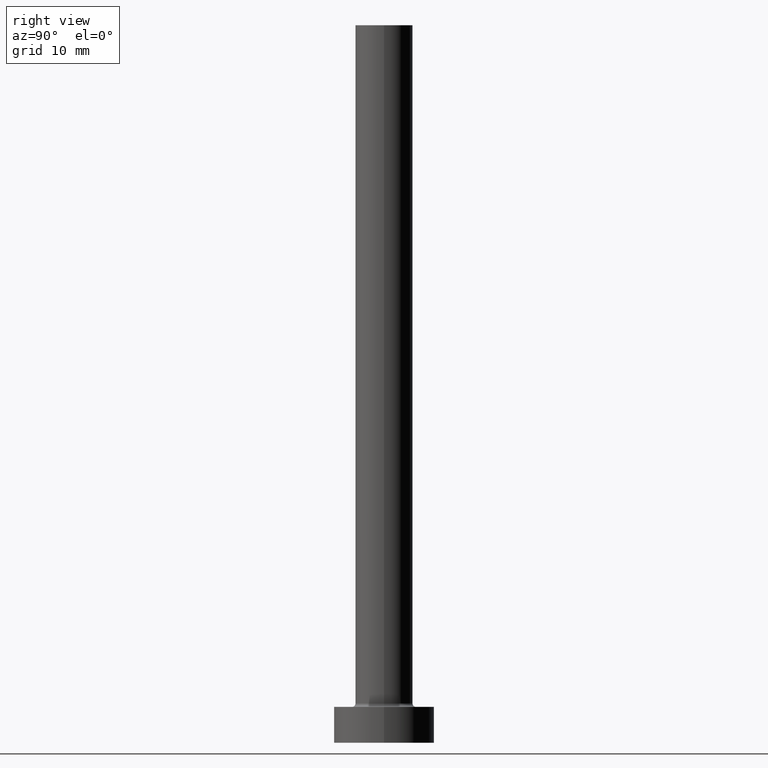
[diagram: clean part render]
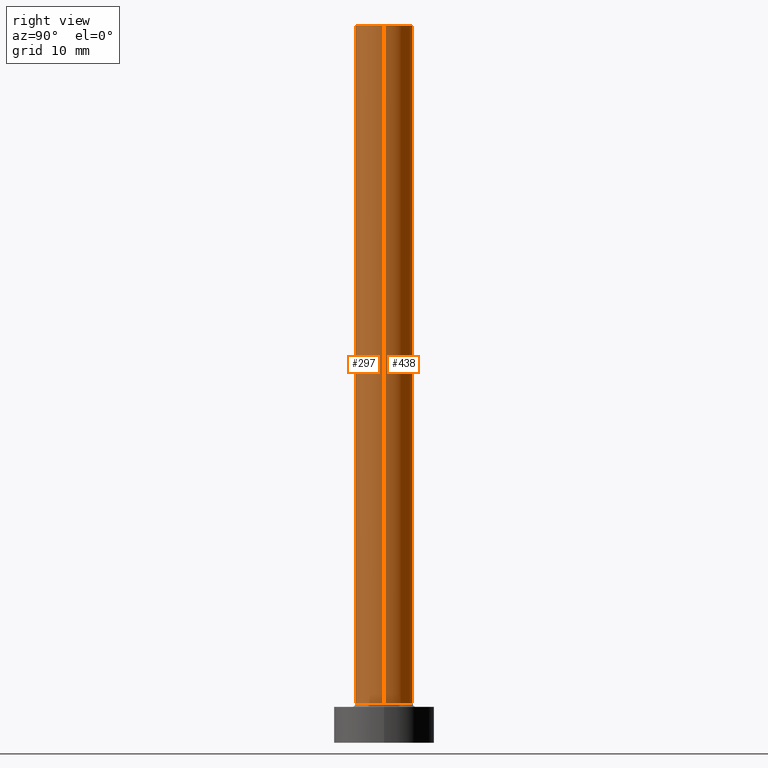
[diagram: same view with one multi-face feature highlighted, each face labeled with its STEP entity id]
A machine part, right view. The highlighted faces form ONE feature: a constant-radius fillet chain: 2 tangent blend faces with common blend radius 4 mm. The faces share edges in the B-rep.
Their STEP definitions:
[1] entity #438 (Cylinder):
#4 = CARTESIAN_POINT ( 'NONE',  ( 0.000000000000000000, 0.000000000000000000, 100.0000000000000000 ) ) ;
#20 = LINE ( 'NONE', #180, #359 ) ;
#43 = CARTESIAN_POINT ( 'NONE',  ( 0.000000000000000000, 0.000000000000000000, 5.500000000000005329 ) ) ;
#45 = EDGE_CURVE ( 'NONE', #194, #159, #222, .T. ) ;
#50 = CARTESIAN_POINT ( 'NONE',  ( -4.000000000000000000, 0.000000000000000000, 5.500000000000005329 ) ) ;
#77 = VERTEX_POINT ( 'NONE', #284 ) ;
#92 = DIRECTION ( 'NONE',  ( -1.000000000000000000, 0.000000000000000000, 0.000000000000000000 ) ) ;
#96 = ORIENTED_EDGE ( 'NONE', *, *, #371, .F. ) ;
#98 = CYLINDRICAL_SURFACE ( 'NONE', #301, 4.000000000000000000 ) ;
#118 = VERTEX_POINT ( 'NONE', #205 ) ;
#123 = CARTESIAN_POINT ( 'NONE',  ( 4.000000000000000000, 4.898587196589412829E-16, 5.500000000000005329 ) ) ;
#124 = VECTOR ( 'NONE', #273, 1000.000000000000000 ) ;
#125 = DIRECTION ( 'NONE',  ( -0.000000000000000000, -0.000000000000000000, -1.000000000000000000 ) ) ;
#131 = EDGE_CURVE ( 'NONE', #77, #194, #20, .T. ) ;
#134 = EDGE_CURVE ( 'NONE', #77, #118, #416, .T. ) ;
#141 = CARTESIAN_POINT ( 'NONE',  ( -4.000000000000000000, 0.000000000000000000, 100.0000000000000000 ) ) ;
#159 = VERTEX_POINT ( 'NONE', #50 ) ;
#180 = CARTESIAN_POINT ( 'NONE',  ( 4.000000000000000000, 4.898587196589412829E-16, 100.0000000000000000 ) ) ;
#190 = ORIENTED_EDGE ( 'NONE', *, *, #45, .T. ) ;
#194 = VERTEX_POINT ( 'NONE', #123 ) ;
#205 = CARTESIAN_POINT ( 'NONE',  ( -4.000000000000000000, 0.000000000000000000, 100.0000000000000000 ) ) ;
#222 = CIRCLE ( 'NONE', #374, 4.000000000000000000 ) ;
#264 = ORIENTED_EDGE ( 'NONE', *, *, #131, .T. ) ;
#272 = LINE ( 'NONE', #141, #124 ) ;
#273 = DIRECTION ( 'NONE',  ( -0.000000000000000000, -0.000000000000000000, -1.000000000000000000 ) ) ;
#284 = CARTESIAN_POINT ( 'NONE',  ( 4.000000000000000000, 4.898587196589412829E-16, 100.0000000000000000 ) ) ;
#301 = AXIS2_PLACEMENT_3D ( 'NONE', #4, #125, #92 ) ;
#303 = DIRECTION ( 'NONE',  ( 1.000000000000000000, 0.000000000000000000, 0.000000000000000000 ) ) ;
#327 = EDGE_LOOP ( 'NONE', ( #419, #264, #190, #96 ) ) ;
#333 = AXIS2_PLACEMENT_3D ( 'NONE', #461, #424, #303 ) ;
#349 = DIRECTION ( 'NONE',  ( -0.000000000000000000, -0.000000000000000000, -1.000000000000000000 ) ) ;
#359 = VECTOR ( 'NONE', #349, 1000.000000000000000 ) ;
#361 = DIRECTION ( 'NONE',  ( 0.000000000000000000, 0.000000000000000000, 1.000000000000000000 ) ) ;
#371 = EDGE_CURVE ( 'NONE', #118, #159, #272, .T. ) ;
#374 = AXIS2_PLACEMENT_3D ( 'NONE', #43, #361, #440 ) ;
#416 = CIRCLE ( 'NONE', #333, 4.000000000000000000 ) ;
#419 = ORIENTED_EDGE ( 'NONE', *, *, #134, .F. ) ;
#424 = DIRECTION ( 'NONE',  ( 0.000000000000000000, 0.000000000000000000, 1.000000000000000000 ) ) ;
#427 = FACE_OUTER_BOUND ( 'NONE', #327, .T. ) ;
#438 = ADVANCED_FACE ( 'NONE', ( #427 ), #98, .T. ) ;
#440 = DIRECTION ( 'NONE',  ( 1.000000000000000000, 0.000000000000000000, 0.000000000000000000 ) ) ;
#461 = CARTESIAN_POINT ( 'NONE',  ( 0.000000000000000000, 0.000000000000000000, 100.0000000000000000 ) ) ;
[2] entity #297 (Cylinder):
#20 = LINE ( 'NONE', #180, #359 ) ;
#24 = EDGE_CURVE ( 'NONE', #118, #77, #58, .T. ) ;
#26 = ORIENTED_EDGE ( 'NONE', *, *, #371, .T. ) ;
#50 = CARTESIAN_POINT ( 'NONE',  ( -4.000000000000000000, 0.000000000000000000, 5.500000000000005329 ) ) ;
#58 = CIRCLE ( 'NONE', #130, 4.000000000000000000 ) ;
#76 = DIRECTION ( 'NONE',  ( 0.000000000000000000, 0.000000000000000000, 1.000000000000000000 ) ) ;
#77 = VERTEX_POINT ( 'NONE', #284 ) ;
#115 = DIRECTION ( 'NONE',  ( -1.000000000000000000, 0.000000000000000000, 0.000000000000000000 ) ) ;
#116 = CARTESIAN_POINT ( 'NONE',  ( 0.000000000000000000, 0.000000000000000000, 5.500000000000005329 ) ) ;
#118 = VERTEX_POINT ( 'NONE', #205 ) ;
#123 = CARTESIAN_POINT ( 'NONE',  ( 4.000000000000000000, 4.898587196589412829E-16, 5.500000000000005329 ) ) ;
#124 = VECTOR ( 'NONE', #273, 1000.000000000000000 ) ;
#130 = AXIS2_PLACEMENT_3D ( 'NONE', #274, #309, #417 ) ;
#131 = EDGE_CURVE ( 'NONE', #77, #194, #20, .T. ) ;
#141 = CARTESIAN_POINT ( 'NONE',  ( -4.000000000000000000, 0.000000000000000000, 100.0000000000000000 ) ) ;
#159 = VERTEX_POINT ( 'NONE', #50 ) ;
#162 = AXIS2_PLACEMENT_3D ( 'NONE', #116, #76, #343 ) ;
#174 = CIRCLE ( 'NONE', #162, 4.000000000000000000 ) ;
#180 = CARTESIAN_POINT ( 'NONE',  ( 4.000000000000000000, 4.898587196589412829E-16, 100.0000000000000000 ) ) ;
#187 = EDGE_LOOP ( 'NONE', ( #253, #300, #26, #249 ) ) ;
#194 = VERTEX_POINT ( 'NONE', #123 ) ;
#205 = CARTESIAN_POINT ( 'NONE',  ( -4.000000000000000000, 0.000000000000000000, 100.0000000000000000 ) ) ;
#212 = CYLINDRICAL_SURFACE ( 'NONE', #271, 4.000000000000000000 ) ;
#240 = CARTESIAN_POINT ( 'NONE',  ( 0.000000000000000000, 0.000000000000000000, 100.0000000000000000 ) ) ;
#249 = ORIENTED_EDGE ( 'NONE', *, *, #381, .T. ) ;
#253 = ORIENTED_EDGE ( 'NONE', *, *, #131, .F. ) ;
#271 = AXIS2_PLACEMENT_3D ( 'NONE', #240, #459, #115 ) ;
#272 = LINE ( 'NONE', #141, #124 ) ;
#273 = DIRECTION ( 'NONE',  ( -0.000000000000000000, -0.000000000000000000, -1.000000000000000000 ) ) ;
#274 = CARTESIAN_POINT ( 'NONE',  ( 0.000000000000000000, 0.000000000000000000, 100.0000000000000000 ) ) ;
#284 = CARTESIAN_POINT ( 'NONE',  ( 4.000000000000000000, 4.898587196589412829E-16, 100.0000000000000000 ) ) ;
#297 = ADVANCED_FACE ( 'NONE', ( #380 ), #212, .T. ) ;
#300 = ORIENTED_EDGE ( 'NONE', *, *, #24, .F. ) ;
#309 = DIRECTION ( 'NONE',  ( 0.000000000000000000, 0.000000000000000000, 1.000000000000000000 ) ) ;
#343 = DIRECTION ( 'NONE',  ( 1.000000000000000000, 0.000000000000000000, 0.000000000000000000 ) ) ;
#349 = DIRECTION ( 'NONE',  ( -0.000000000000000000, -0.000000000000000000, -1.000000000000000000 ) ) ;
#359 = VECTOR ( 'NONE', #349, 1000.000000000000000 ) ;
#371 = EDGE_CURVE ( 'NONE', #118, #159, #272, .T. ) ;
#380 = FACE_OUTER_BOUND ( 'NONE', #187, .T. ) ;
#381 = EDGE_CURVE ( 'NONE', #159, #194, #174, .T. ) ;
#417 = DIRECTION ( 'NONE',  ( 1.000000000000000000, 0.000000000000000000, 0.000000000000000000 ) ) ;
#459 = DIRECTION ( 'NONE',  ( -0.000000000000000000, -0.000000000000000000, -1.000000000000000000 ) ) ;